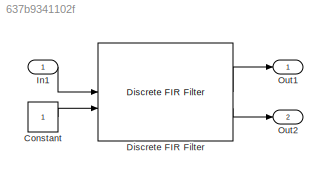
MODEL slx_637b9341102f
KIND model
CONFIG AbsTol = auto
CONFIG EnableMultiTasking = off
CONFIG FixedStep = auto
CONFIG MaxStep = auto
CONFIG MinStep = auto
CONFIG RelTol = 1e-3
CONFIG SampleTimeConstraint = Unconstrained
CONFIG SolverName = VariableStepAuto
CONFIG StartTime = 0.0
CONFIG StopTime = 1
BLOCK [Constant] Constant
  OutDataTypeStr = boolean
BLOCK [Reference] Discrete FIR Filter  REF=dsphdlfiltering2/Discrete FIR Filter
  SourceBlock = dsphdlfiltering2/Discrete FIR Filter
  SourceType = Discrete FIR Filter
BLOCK [Inport] In1
  OutDataTypeStr = uint16
BLOCK [Outport] Out1
  VectorParamsAs1DForOutWhenUnconnected = off
BLOCK [Outport] Out2
  Port = 2
  VectorParamsAs1DForOutWhenUnconnected = off
LINE Constant:1 -> Discrete FIR Filter:2
LINE Discrete FIR Filter:1 -> Out1:1
LINE Discrete FIR Filter:2 -> Out2:1
LINE In1:1 -> Discrete FIR Filter:1
